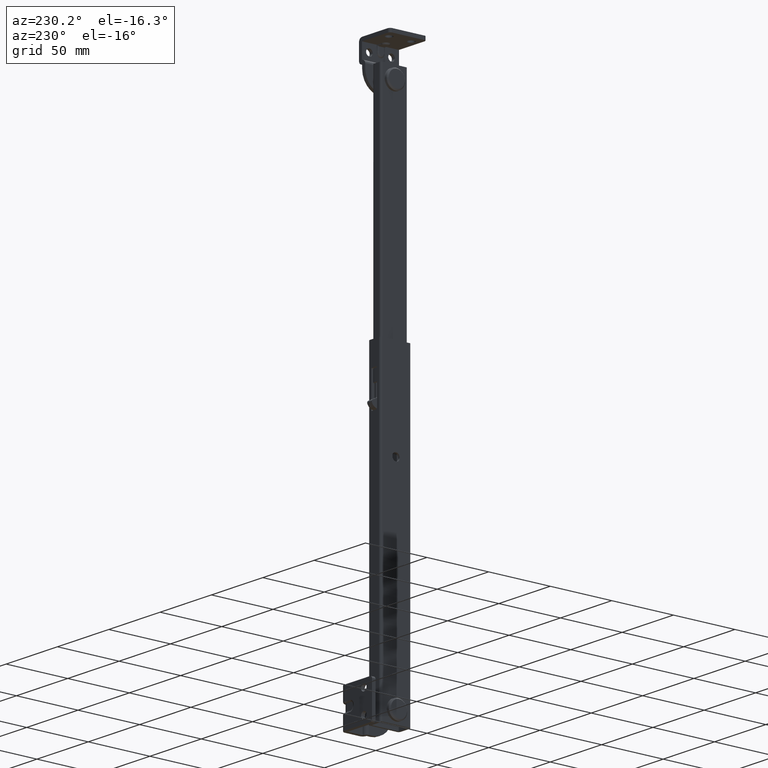
[diagram: clean part render]
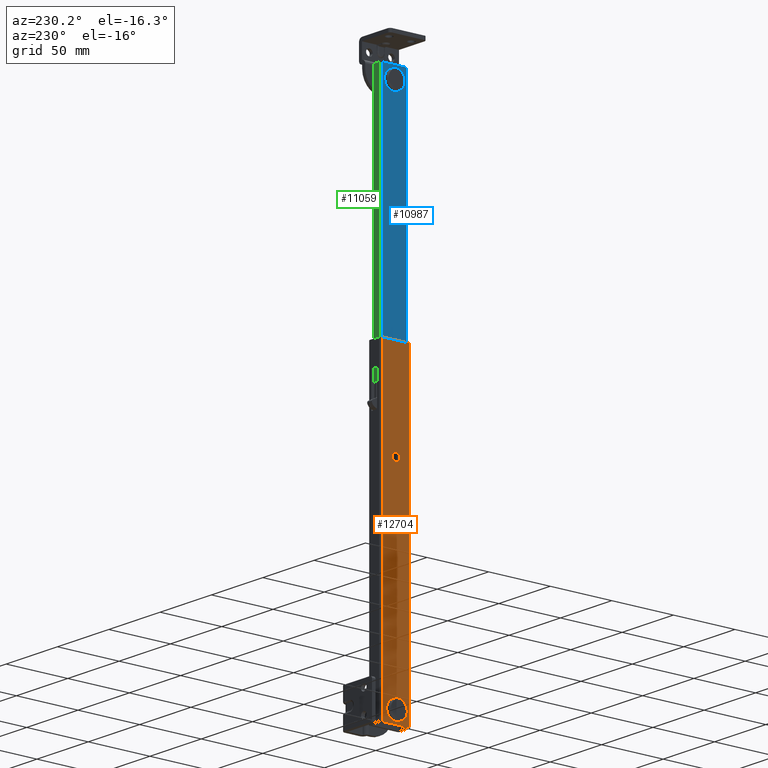
[diagram: same view with three faces highlighted in distinct colors, each labeled with its STEP entity id]
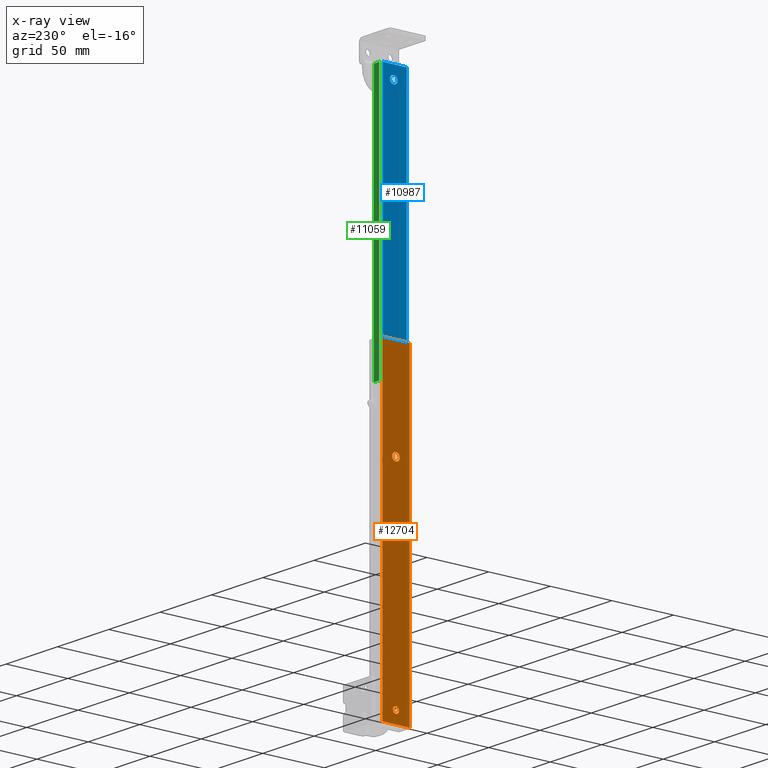
[diagram: x-ray of the same camera — body ghosted, the three highlighted faces saturated]
A machine part, auxiliary view with three faces highlighted in distinct colors.
The next image is the same camera in x-ray (body ghosted, the three faces saturated) — at least one of them is partly hidden behind the body in this view.
Their STEP definitions:

[orange] entity #12704 — the highlighted face is a freeform B-spline surface patch.
#11131=CARTESIAN_POINT('',(-19.699997000000049,0.0,2.500000000000000));
#11132=VERTEX_POINT('',#11131);
#11133=CARTESIAN_POINT('',(-19.699997000000049,-2.480665533620065,0.310320012744065));
#11134=VERTEX_POINT('',#11133);
#11135=CARTESIAN_POINT('',(-19.699997000000049,0.0,2.500000000000000));
#11136=CARTESIAN_POINT('',(-19.699997000000049,-2.206746486848124,2.500000000000000));
#11137=CARTESIAN_POINT('',(-19.699997000000053,-2.480665533620065,0.310320012744065));
#11145=(BOUNDED_CURVE()B_SPLINE_CURVE(2,(#11135,#11136,#11137),.UNSPECIFIED.,.F.,.U.)B_SPLINE_CURVE_WITH_KNOTS((3,3),(0.500000000000000,0.728526070003487),.UNSPECIFIED.)CURVE()GEOMETRIC_REPRESENTATION_ITEM()RATIONAL_B_SPLINE_CURVE((1.0,0.732265055095561,0.954005428284015))REPRESENTATION_ITEM(''));
#11146=EDGE_CURVE('',#11132,#11134,#11145,.T.);
#11148=CARTESIAN_POINT('',(-19.699997000000049,2.499904807626976,-0.021816342579167));
#11149=VERTEX_POINT('',#11148);
#11150=CARTESIAN_POINT('',(-19.699997000000053,2.499904807626976,-0.021816342579167));
#11151=CARTESIAN_POINT('',(-19.699997000000053,2.499999999999999,-0.010908380885206));
#11152=CARTESIAN_POINT('',(-19.699997000000049,2.500000000000000,0.0));
#11153=CARTESIAN_POINT('',(-19.699997000000053,2.500000000000000,2.500000000000000));
#11154=CARTESIAN_POINT('',(-19.699997000000049,0.0,2.500000000000000));
#11162=(BOUNDED_CURVE()B_SPLINE_CURVE(2,(#11150,#11151,#11152,#11153,#11154),.UNSPECIFIED.,.F.,.U.)B_SPLINE_CURVE_WITH_KNOTS((3,2,3),(0.248460105124835,0.250000000000000,0.500000000000000),.UNSPECIFIED.)CURVE()GEOMETRIC_REPRESENTATION_ITEM()RATIONAL_B_SPLINE_CURVE((0.996414026850284,0.998195900933515,1.0,0.707106781186548,1.0))REPRESENTATION_ITEM(''));
#11163=EDGE_CURVE('',#11149,#11132,#11162,.T.);
#11234=CARTESIAN_POINT('',(-19.699997000000049,0.0,-2.500000000000000));
#11235=VERTEX_POINT('',#11234);
#11236=CARTESIAN_POINT('',(-19.699997000000057,-2.480665533620064,0.310320012744065));
#11237=CARTESIAN_POINT('',(-19.699997000000049,-2.500000000000000,0.155762326466545));
#11238=CARTESIAN_POINT('',(-19.699997000000049,-2.500000000000000,0.0));
#11239=CARTESIAN_POINT('',(-19.699997000000053,-2.500000000000000,-2.500000000000000));
#11240=CARTESIAN_POINT('',(-19.699997000000049,0.0,-2.500000000000000));
#11248=(BOUNDED_CURVE()B_SPLINE_CURVE(2,(#11236,#11237,#11238,#11239,#11240),.UNSPECIFIED.,.F.,.U.)B_SPLINE_CURVE_WITH_KNOTS((3,2,3),(0.728526070003487,0.750000000000000,1.0),.UNSPECIFIED.)CURVE()GEOMETRIC_REPRESENTATION_ITEM()RATIONAL_B_SPLINE_CURVE((0.954005428284015,0.974841726090986,1.0,0.707106781186548,1.0))REPRESENTATION_ITEM(''));
#11249=EDGE_CURVE('',#11134,#11235,#11248,.T.);
#11283=CARTESIAN_POINT('',(-19.699997000000049,0.0,-2.500000000000000));
#11284=CARTESIAN_POINT('',(-19.699997000000049,2.478278018887013,-2.500000000000000));
#11285=CARTESIAN_POINT('',(-19.699997000000053,2.499904807626976,-0.021816342579167));
#11293=(BOUNDED_CURVE()B_SPLINE_CURVE(2,(#11283,#11284,#11285),.UNSPECIFIED.,.F.,.U.)B_SPLINE_CURVE_WITH_KNOTS((3,3),(0.0,0.248460105124835),.UNSPECIFIED.)CURVE()GEOMETRIC_REPRESENTATION_ITEM()RATIONAL_B_SPLINE_CURVE((1.0,0.708910880253033,0.996414026850284))REPRESENTATION_ITEM(''));
#11294=EDGE_CURVE('',#11235,#11149,#11293,.T.);
#11499=CARTESIAN_POINT('',(-19.699997000000049,-8.276935E-015,167.550000000000010));
#11500=VERTEX_POINT('',#11499);
#11501=CARTESIAN_POINT('',(-19.699997000000049,-3.026411951841830,164.878590408950090));
#11502=VERTEX_POINT('',#11501);
#11503=CARTESIAN_POINT('',(-19.699997000000049,-8.276935E-015,167.550000000000010));
#11504=CARTESIAN_POINT('',(-19.699997000000057,-2.692230725784548,167.550000000000010));
#11505=CARTESIAN_POINT('',(-19.699997000000053,-3.026411951841829,164.878590408950030));
#11513=(BOUNDED_CURVE()B_SPLINE_CURVE(2,(#11503,#11504,#11505),.UNSPECIFIED.,.F.,.U.)B_SPLINE_CURVE_WITH_KNOTS((3,3),(0.500000000000000,0.728526070738797),.UNSPECIFIED.)CURVE()GEOMETRIC_REPRESENTATION_ITEM()RATIONAL_B_SPLINE_CURVE((1.0,0.732265054234092,0.954005429710967))REPRESENTATION_ITEM(''));
#11514=EDGE_CURVE('',#11500,#11502,#11513,.T.);
#11516=CARTESIAN_POINT('',(-19.699997000000049,3.049883865313962,164.473384063091600));
#11517=VERTEX_POINT('',#11516);
#11518=CARTESIAN_POINT('',(-19.699997000000049,3.049883865313962,164.473384063091570));
#11519=CARTESIAN_POINT('',(-19.699997000000049,3.049999999999991,164.486691776358330));
#11520=CARTESIAN_POINT('',(-19.699997000000049,3.049999999999992,164.500000000000000));
#11521=CARTESIAN_POINT('',(-19.699997000000053,3.049999999999992,167.549999999999950));
#11522=CARTESIAN_POINT('',(-19.699997000000049,-8.276935E-015,167.550000000000010));
#11530=(BOUNDED_CURVE()B_SPLINE_CURVE(2,(#11518,#11519,#11520,#11521,#11522),.UNSPECIFIED.,.F.,.U.)B_SPLINE_CURVE_WITH_KNOTS((3,2,3),(0.248460105244755,0.250000000000000,0.500000000000000),.UNSPECIFIED.)CURVE()GEOMETRIC_REPRESENTATION_ITEM()RATIONAL_B_SPLINE_CURVE((0.996414027127812,0.998195901074010,1.0,0.707106781186547,1.0))REPRESENTATION_ITEM(''));
#11531=EDGE_CURVE('',#11517,#11500,#11530,.T.);
#11602=CARTESIAN_POINT('',(-19.699997000000049,-8.276935E-015,161.449999999999990));
#11603=VERTEX_POINT('',#11602);
#11604=CARTESIAN_POINT('',(-19.699997000000053,-3.026411951841830,164.878590408950150));
#11605=CARTESIAN_POINT('',(-19.699997000000046,-3.050000000000008,164.690030031614300));
#11606=CARTESIAN_POINT('',(-19.699997000000049,-3.050000000000008,164.500000000000000));
#11607=CARTESIAN_POINT('',(-19.699997000000053,-3.050000000000009,161.450000000000020));
#11608=CARTESIAN_POINT('',(-19.699997000000049,-8.276935E-015,161.449999999999990));
#11616=(BOUNDED_CURVE()B_SPLINE_CURVE(2,(#11604,#11605,#11606,#11607,#11608),.UNSPECIFIED.,.F.,.U.)B_SPLINE_CURVE_WITH_KNOTS((3,2,3),(0.728526070738797,0.750000000000000,1.0),.UNSPECIFIED.)CURVE()GEOMETRIC_REPRESENTATION_ITEM()RATIONAL_B_SPLINE_CURVE((0.954005429710966,0.974841726952455,1.0,0.707106781186547,1.0))REPRESENTATION_ITEM(''));
#11617=EDGE_CURVE('',#11502,#11603,#11616,.T.);
#11651=CARTESIAN_POINT('',(-19.699997000000049,-8.276935E-015,161.449999999999990));
#11652=CARTESIAN_POINT('',(-19.699997000000057,3.023499185100661,161.450000000000020));
#11653=CARTESIAN_POINT('',(-19.699997000000049,3.049883865313962,164.473384063091570));
#11661=(BOUNDED_CURVE()B_SPLINE_CURVE(2,(#11651,#11652,#11653),.UNSPECIFIED.,.F.,.U.)B_SPLINE_CURVE_WITH_KNOTS((3,3),(0.0,0.248460105244755),.UNSPECIFIED.)CURVE()GEOMETRIC_REPRESENTATION_ITEM()RATIONAL_B_SPLINE_CURVE((1.0,0.708910880112538,0.996414027127812))REPRESENTATION_ITEM(''));
#11662=EDGE_CURVE('',#11603,#11517,#11661,.T.);
#12354=CARTESIAN_POINT('',(-19.699997000000000,-10.900002000000001,-9.500000000000000));
#12355=VERTEX_POINT('',#12354);
#12369=CARTESIAN_POINT('',(-19.699990999999901,10.900001860373660,-9.500000000000000));
#12370=VERTEX_POINT('',#12369);
#12371=CARTESIAN_POINT('',(-19.699990999999901,10.900001860373660,-9.500000000000000));
#12372=CARTESIAN_POINT('',(-19.699997000000000,-10.900002000000001,-9.500000000000000));
#12373=QUASI_UNIFORM_CURVE('',1,(#12371,#12372),.UNSPECIFIED.,.F.,.U.);
#12374=EDGE_CURVE('',#12370,#12355,#12373,.T.);
#12460=CARTESIAN_POINT('',(-19.699990999999901,10.900001860373701,240.500000000000000));
#12461=VERTEX_POINT('',#12460);
#12477=CARTESIAN_POINT('',(-19.699997000000000,-10.900001999999960,240.500000000000000));
#12478=VERTEX_POINT('',#12477);
#12479=CARTESIAN_POINT('',(-19.699990999999901,10.900001860373701,240.500000000000000));
#12480=CARTESIAN_POINT('',(-19.699997000000000,-10.900001999999960,240.500000000000000));
#12481=QUASI_UNIFORM_CURVE('',1,(#12479,#12480),.UNSPECIFIED.,.F.,.U.);
#12482=EDGE_CURVE('',#12461,#12478,#12481,.T.);
#12669=CARTESIAN_POINT('',(-19.699997000000000,-10.900001999999960,240.500000000000000));
#12670=CARTESIAN_POINT('',(-19.699997000000000,-10.900002000000001,-9.500000000000000));
#12671=QUASI_UNIFORM_CURVE('',1,(#12669,#12670),.UNSPECIFIED.,.F.,.U.);
#12672=EDGE_CURVE('',#12478,#12355,#12671,.T.);
#12677=CARTESIAN_POINT('',(-19.699997000000000,-11.988911663402421,-21.987499515451479));
#12678=CARTESIAN_POINT('',(-19.699997000000000,-11.988911663402421,252.987506220974010));
#12679=CARTESIAN_POINT('',(-19.699997000000000,11.988910939054451,-21.987499515451479));
#12680=CARTESIAN_POINT('',(-19.699997000000000,11.988910939054451,252.987506220974010));
#12681=B_SPLINE_SURFACE_WITH_KNOTS('',1,1,((#12677,#12679),(#12678,#12680)),.UNSPECIFIED.,.F.,.F.,.U.,(2,2),(2,2),(0.0,274.975005736425490),(0.0,23.977822602456879),.UNSPECIFIED.);
#12682=ORIENTED_EDGE('',*,*,#12374,.T.);
#12683=ORIENTED_EDGE('',*,*,#12672,.F.);
#12684=ORIENTED_EDGE('',*,*,#12482,.F.);
#12685=CARTESIAN_POINT('',(-19.699990999999901,10.900001860373701,240.500000000000000));
#12686=CARTESIAN_POINT('',(-19.699990999999901,10.900001860373660,-9.500000000000000));
#12687=QUASI_UNIFORM_CURVE('',1,(#12685,#12686),.UNSPECIFIED.,.F.,.U.);
#12688=EDGE_CURVE('',#12461,#12370,#12687,.T.);
#12689=ORIENTED_EDGE('',*,*,#12688,.T.);
#12690=EDGE_LOOP('',(#12682,#12683,#12684,#12689));
#12691=FACE_OUTER_BOUND('',#12690,.T.);
#12692=ORIENTED_EDGE('',*,*,#11662,.T.);
#12693=ORIENTED_EDGE('',*,*,#11531,.T.);
#12694=ORIENTED_EDGE('',*,*,#11514,.T.);
#12695=ORIENTED_EDGE('',*,*,#11617,.T.);
#12696=EDGE_LOOP('',(#12692,#12693,#12694,#12695));
#12697=FACE_BOUND('',#12696,.T.);
#12698=ORIENTED_EDGE('',*,*,#11294,.T.);
#12699=ORIENTED_EDGE('',*,*,#11163,.T.);
#12700=ORIENTED_EDGE('',*,*,#11146,.T.);
#12701=ORIENTED_EDGE('',*,*,#11249,.T.);
#12702=EDGE_LOOP('',(#12698,#12699,#12700,#12701));
#12703=FACE_BOUND('',#12702,.T.);
#12704=ADVANCED_FACE('',(#12691,#12697,#12703),#12681,.T.);

[blue] entity #10987 — the highlighted face is a freeform B-spline surface patch.
#9658=CARTESIAN_POINT('',(-17.599990999999999,3.028679054806954,409.639995579230690));
#9659=VERTEX_POINT('',#9658);
#9660=CARTESIAN_POINT('',(-17.599990999999999,-3.505627E-014,413.050000000000010));
#9661=VERTEX_POINT('',#9660);
#9662=CARTESIAN_POINT('',(-17.599990999999996,3.028679054806954,409.639995579230630));
#9663=CARTESIAN_POINT('',(-17.599990999999996,3.049999999999966,409.819366429941970));
#9664=CARTESIAN_POINT('',(-17.599990999999999,3.049999999999965,410.0));
#9665=CARTESIAN_POINT('',(-17.599990999999996,3.049999999999965,413.050000000000010));
#9666=CARTESIAN_POINT('',(-17.599990999999999,-3.505627E-014,413.050000000000010));
#9674=(BOUNDED_CURVE()B_SPLINE_CURVE(2,(#9662,#9663,#9664,#9665,#9666),.UNSPECIFIED.,.F.,.U.)B_SPLINE_CURVE_WITH_KNOTS((3,2,3),(0.229562472950248,0.250000000000000,0.500000000000000),.UNSPECIFIED.)CURVE()GEOMETRIC_REPRESENTATION_ITEM()RATIONAL_B_SPLINE_CURVE((0.956026753079686,0.976055947671244,1.0,0.707106781186547,1.0))REPRESENTATION_ITEM(''));
#9675=EDGE_CURVE('',#9659,#9661,#9674,.T.);
#9716=CARTESIAN_POINT('',(-17.599990999999999,-3.044311134765654,410.186198052465780));
#9717=VERTEX_POINT('',#9716);
#9723=CARTESIAN_POINT('',(-17.599990999999999,-3.505627E-014,413.050000000000010));
#9724=CARTESIAN_POINT('',(-17.599990999999992,-2.869153491061323,413.049999999999950));
#9725=CARTESIAN_POINT('',(-17.599990999999999,-3.044311134765654,410.186198052465780));
#9733=(BOUNDED_CURVE()B_SPLINE_CURVE(2,(#9723,#9724,#9725),.UNSPECIFIED.,.F.,.U.)B_SPLINE_CURVE_WITH_KNOTS((3,3),(0.500000000000000,0.739332961461560),.UNSPECIFIED.)CURVE()GEOMETRIC_REPRESENTATION_ITEM()RATIONAL_B_SPLINE_CURVE((1.0,0.719603994197471,0.976072040000639))REPRESENTATION_ITEM(''));
#9734=EDGE_CURVE('',#9661,#9717,#9733,.T.);
#9757=CARTESIAN_POINT('',(-17.599990999999999,-3.505627E-014,406.949999999999990));
#9758=VERTEX_POINT('',#9757);
#9759=CARTESIAN_POINT('',(-17.599990999999999,-3.505627E-014,406.949999999999990));
#9760=CARTESIAN_POINT('',(-17.599990999999999,2.708932295025173,406.949999999999990));
#9761=CARTESIAN_POINT('',(-17.599991000000003,3.028679054806954,409.639995579230630));
#9769=(BOUNDED_CURVE()B_SPLINE_CURVE(2,(#9759,#9760,#9761),.UNSPECIFIED.,.F.,.U.)B_SPLINE_CURVE_WITH_KNOTS((3,3),(0.0,0.229562472950248),.UNSPECIFIED.)CURVE()GEOMETRIC_REPRESENTATION_ITEM()RATIONAL_B_SPLINE_CURVE((1.0,0.731050833515303,0.956026753079686))REPRESENTATION_ITEM(''));
#9770=EDGE_CURVE('',#9758,#9659,#9769,.T.);
#9772=CARTESIAN_POINT('',(-17.599991000000003,-3.044311134765654,410.186198052465780));
#9773=CARTESIAN_POINT('',(-17.599991000000006,-3.050000000000035,410.093185934964540));
#9774=CARTESIAN_POINT('',(-17.599990999999999,-3.050000000000035,410.0));
#9775=CARTESIAN_POINT('',(-17.599990999999996,-3.050000000000036,406.950000000000050));
#9776=CARTESIAN_POINT('',(-17.599990999999999,-3.505627E-014,406.949999999999990));
#9784=(BOUNDED_CURVE()B_SPLINE_CURVE(2,(#9772,#9773,#9774,#9775,#9776),.UNSPECIFIED.,.F.,.U.)B_SPLINE_CURVE_WITH_KNOTS((3,2,3),(0.739332961461561,0.750000000000000,1.0),.UNSPECIFIED.)CURVE()GEOMETRIC_REPRESENTATION_ITEM()RATIONAL_B_SPLINE_CURVE((0.976072040000640,0.987502786989078,1.0,0.707106781186547,1.0))REPRESENTATION_ITEM(''));
#9785=EDGE_CURVE('',#9717,#9758,#9784,.T.);
#10030=CARTESIAN_POINT('',(-17.599990999999999,6.028679054806989,197.639995579230710));
#10031=VERTEX_POINT('',#10030);
#10032=CARTESIAN_POINT('',(-17.599990999999999,3.0,201.050000000000010));
#10033=VERTEX_POINT('',#10032);
#10034=CARTESIAN_POINT('',(-17.599990999999992,6.028679054806989,197.639995579230710));
#10035=CARTESIAN_POINT('',(-17.599990999999996,6.050000000000000,197.819366429941940));
#10036=CARTESIAN_POINT('',(-17.599990999999999,6.050000000000000,198.0));
#10037=CARTESIAN_POINT('',(-17.599990999999996,6.050000000000000,201.050000000000070));
#10038=CARTESIAN_POINT('',(-17.599990999999999,3.0,201.050000000000010));
#10046=(BOUNDED_CURVE()B_SPLINE_CURVE(2,(#10034,#10035,#10036,#10037,#10038),.UNSPECIFIED.,.F.,.U.)B_SPLINE_CURVE_WITH_KNOTS((3,2,3),(0.229562472950247,0.250000000000000,0.500000000000000),.UNSPECIFIED.)CURVE()GEOMETRIC_REPRESENTATION_ITEM()RATIONAL_B_SPLINE_CURVE((0.956026753079685,0.976055947671244,1.0,0.707106781186547,1.0))REPRESENTATION_ITEM(''));
#10047=EDGE_CURVE('',#10031,#10033,#10046,.T.);
#10088=CARTESIAN_POINT('',(-17.599990999999999,-0.044311134765620,198.186198052465810));
#10089=VERTEX_POINT('',#10088);
#10095=CARTESIAN_POINT('',(-17.599990999999999,3.0,201.050000000000010));
#10096=CARTESIAN_POINT('',(-17.599990999999999,0.130846508938637,201.050000000000010));
#10097=CARTESIAN_POINT('',(-17.599990999999992,-0.044311134765620,198.186198052465810));
#10105=(BOUNDED_CURVE()B_SPLINE_CURVE(2,(#10095,#10096,#10097),.UNSPECIFIED.,.F.,.U.)B_SPLINE_CURVE_WITH_KNOTS((3,3),(0.500000000000000,0.739332961461565),.UNSPECIFIED.)CURVE()GEOMETRIC_REPRESENTATION_ITEM()RATIONAL_B_SPLINE_CURVE((1.0,0.719603994197465,0.976072040000648))REPRESENTATION_ITEM(''));
#10106=EDGE_CURVE('',#10033,#10089,#10105,.T.);
#10129=CARTESIAN_POINT('',(-17.599990999999999,3.0,194.949999999999990));
#10130=VERTEX_POINT('',#10129);
#10131=CARTESIAN_POINT('',(-17.599990999999999,3.0,194.949999999999990));
#10132=CARTESIAN_POINT('',(-17.599991000000003,5.708932295025199,194.950000000000130));
#10133=CARTESIAN_POINT('',(-17.599990999999999,6.028679054806989,197.639995579230660));
#10141=(BOUNDED_CURVE()B_SPLINE_CURVE(2,(#10131,#10132,#10133),.UNSPECIFIED.,.F.,.U.)B_SPLINE_CURVE_WITH_KNOTS((3,3),(0.0,0.229562472950248),.UNSPECIFIED.)CURVE()GEOMETRIC_REPRESENTATION_ITEM()RATIONAL_B_SPLINE_CURVE((1.0,0.731050833515303,0.956026753079685))REPRESENTATION_ITEM(''));
#10142=EDGE_CURVE('',#10130,#10031,#10141,.T.);
#10144=CARTESIAN_POINT('',(-17.599990999999999,-0.044311134765620,198.186198052465840));
#10145=CARTESIAN_POINT('',(-17.599990999999999,-0.050000000000000,198.093185934964450));
#10146=CARTESIAN_POINT('',(-17.599990999999999,-0.050000000000000,198.0));
#10147=CARTESIAN_POINT('',(-17.599990999999996,-0.050000000000000,194.950000000000100));
#10148=CARTESIAN_POINT('',(-17.599990999999999,3.0,194.949999999999990));
#10156=(BOUNDED_CURVE()B_SPLINE_CURVE(2,(#10144,#10145,#10146,#10147,#10148),.UNSPECIFIED.,.F.,.U.)B_SPLINE_CURVE_WITH_KNOTS((3,2,3),(0.739332961461564,0.750000000000000,1.0),.UNSPECIFIED.)CURVE()GEOMETRIC_REPRESENTATION_ITEM()RATIONAL_B_SPLINE_CURVE((0.976072040000647,0.987502786989081,1.0,0.707106781186547,1.0))REPRESENTATION_ITEM(''));
#10157=EDGE_CURVE('',#10089,#10130,#10156,.T.);
#10396=CARTESIAN_POINT('',(-17.599999999999049,8.900000000000000,213.0));
#10397=VERTEX_POINT('',#10396);
#10411=CARTESIAN_POINT('',(-17.599999999998701,8.899999257732080,420.0));
#10412=VERTEX_POINT('',#10411);
#10413=CARTESIAN_POINT('',(-17.599999999999049,8.900000000000000,213.0));
#10414=CARTESIAN_POINT('',(-17.599999999998701,8.899999257732080,420.0));
#10415=QUASI_UNIFORM_CURVE('',1,(#10413,#10414),.UNSPECIFIED.,.F.,.U.);
#10416=EDGE_CURVE('',#10397,#10412,#10415,.T.);
#10585=CARTESIAN_POINT('',(-17.599999999998701,8.899999257732041,170.0));
#10586=VERTEX_POINT('',#10585);
#10602=CARTESIAN_POINT('',(-17.599999999999049,8.900000000000000,185.0));
#10603=VERTEX_POINT('',#10602);
#10604=CARTESIAN_POINT('',(-17.599999999998701,8.899999257732041,170.0));
#10605=CARTESIAN_POINT('',(-17.599999999999049,8.900000000000000,185.0));
#10606=QUASI_UNIFORM_CURVE('',1,(#10604,#10605),.UNSPECIFIED.,.F.,.U.);
#10607=EDGE_CURVE('',#10586,#10603,#10606,.T.);
#10651=CARTESIAN_POINT('',(-17.599999999999049,8.900000000000000,213.0));
#10652=CARTESIAN_POINT('',(-17.599999999999049,8.900000000000000,185.0));
#10653=QUASI_UNIFORM_CURVE('',1,(#10651,#10652),.UNSPECIFIED.,.F.,.U.);
#10654=EDGE_CURVE('',#10397,#10603,#10653,.T.);
#10751=CARTESIAN_POINT('',(-17.599990999999800,-10.500000000000000,420.0));
#10752=VERTEX_POINT('',#10751);
#10753=CARTESIAN_POINT('',(-17.599990999999800,-10.500000000000000,420.0));
#10754=CARTESIAN_POINT('',(-17.599999999998701,8.899999257732080,420.0));
#10755=QUASI_UNIFORM_CURVE('',1,(#10753,#10754),.UNSPECIFIED.,.F.,.U.);
#10756=EDGE_CURVE('',#10752,#10412,#10755,.T.);
#10848=CARTESIAN_POINT('',(-17.599990999999800,-10.500000000000000,170.0));
#10849=VERTEX_POINT('',#10848);
#10855=CARTESIAN_POINT('',(-17.599990999999800,-10.500000000000000,170.0));
#10856=CARTESIAN_POINT('',(-17.599999999998701,8.899999257732041,170.0));
#10857=QUASI_UNIFORM_CURVE('',1,(#10855,#10856),.UNSPECIFIED.,.F.,.U.);
#10858=EDGE_CURVE('',#10849,#10586,#10857,.T.);
#10882=CARTESIAN_POINT('',(-17.599990999999800,-10.500000000000000,170.0));
#10883=CARTESIAN_POINT('',(-17.599990999999800,-10.500000000000000,420.0));
#10884=QUASI_UNIFORM_CURVE('',1,(#10882,#10883),.UNSPECIFIED.,.F.,.U.);
#10885=EDGE_CURVE('',#10849,#10752,#10884,.T.);
#10962=CARTESIAN_POINT('',(-17.599990550449888,-11.469029893088610,432.487499515451470));
#10963=CARTESIAN_POINT('',(-17.600000449548531,9.869029025841032,432.487499515451470));
#10964=CARTESIAN_POINT('',(-17.599990550449888,-11.469029893088610,157.512493779025990));
#10965=CARTESIAN_POINT('',(-17.600000449548531,9.869029025841032,157.512493779025990));
#10966=B_SPLINE_SURFACE_WITH_KNOTS('',1,1,((#10962,#10964),(#10963,#10965)),.UNSPECIFIED.,.F.,.F.,.U.,(2,2),(2,2),(0.0,21.338058918931939),(0.0,274.975005736425490),.UNSPECIFIED.);
#10967=ORIENTED_EDGE('',*,*,#10858,.F.);
#10968=ORIENTED_EDGE('',*,*,#10885,.T.);
#10969=ORIENTED_EDGE('',*,*,#10756,.T.);
#10970=ORIENTED_EDGE('',*,*,#10416,.F.);
#10971=ORIENTED_EDGE('',*,*,#10654,.T.);
#10972=ORIENTED_EDGE('',*,*,#10607,.F.);
#10973=EDGE_LOOP('',(#10967,#10968,#10969,#10970,#10971,#10972));
#10974=FACE_OUTER_BOUND('',#10973,.T.);
#10975=ORIENTED_EDGE('',*,*,#10106,.T.);
#10976=ORIENTED_EDGE('',*,*,#10157,.T.);
#10977=ORIENTED_EDGE('',*,*,#10142,.T.);
#10978=ORIENTED_EDGE('',*,*,#10047,.T.);
#10979=EDGE_LOOP('',(#10975,#10976,#10977,#10978));
#10980=FACE_BOUND('',#10979,.T.);
#10981=ORIENTED_EDGE('',*,*,#9734,.T.);
#10982=ORIENTED_EDGE('',*,*,#9785,.T.);
#10983=ORIENTED_EDGE('',*,*,#9770,.T.);
#10984=ORIENTED_EDGE('',*,*,#9675,.T.);
#10985=EDGE_LOOP('',(#10981,#10982,#10983,#10984));
#10986=FACE_BOUND('',#10985,.T.);
#10987=ADVANCED_FACE('',(#10974,#10980,#10986),#10966,.T.);

[green] entity #11059 — the highlighted face is a freeform B-spline surface patch.
#10394=CARTESIAN_POINT('',(-15.999999999998900,10.500000000000000,213.0));
#10395=VERTEX_POINT('',#10394);
#10418=CARTESIAN_POINT('',(-15.999999999998851,10.500000000000000,420.0));
#10419=VERTEX_POINT('',#10418);
#10435=CARTESIAN_POINT('',(-15.999999999998851,10.500000000000000,420.0));
#10436=CARTESIAN_POINT('',(-15.999999999998900,10.500000000000000,213.0));
#10437=QUASI_UNIFORM_CURVE('',1,(#10435,#10436),.UNSPECIFIED.,.F.,.U.);
#10438=EDGE_CURVE('',#10419,#10395,#10437,.T.);
#10459=CARTESIAN_POINT('',(-10.899988000000020,10.500000000000000,213.0));
#10460=VERTEX_POINT('',#10459);
#10476=CARTESIAN_POINT('',(-10.899988000000000,10.500000000000000,420.0));
#10477=VERTEX_POINT('',#10476);
#10478=CARTESIAN_POINT('',(-10.899988000000020,10.500000000000000,213.0));
#10479=CARTESIAN_POINT('',(-10.899988000000000,10.500000000000000,420.0));
#10480=QUASI_UNIFORM_CURVE('',1,(#10478,#10479),.UNSPECIFIED.,.F.,.U.);
#10481=EDGE_CURVE('',#10460,#10477,#10480,.T.);
#10711=CARTESIAN_POINT('',(-15.999999999998900,10.500000000000000,213.0));
#10712=CARTESIAN_POINT('',(-10.899988000000020,10.500000000000000,213.0));
#10713=QUASI_UNIFORM_CURVE('',1,(#10711,#10712),.UNSPECIFIED.,.F.,.U.);
#10714=EDGE_CURVE('',#10395,#10460,#10713,.T.);
#10745=CARTESIAN_POINT('',(-15.999999999998851,10.500000000000000,420.0));
#10746=CARTESIAN_POINT('',(-10.899988000000000,10.500000000000000,420.0));
#10747=QUASI_UNIFORM_CURVE('',1,(#10745,#10746),.UNSPECIFIED.,.F.,.U.);
#10748=EDGE_CURVE('',#10419,#10477,#10747,.T.);
#11048=CARTESIAN_POINT('',(-10.645242554110659,10.500000000000000,430.339649598793930));
#11049=CARTESIAN_POINT('',(-10.645242554110659,10.500000000000000,202.660344849033490));
#11050=CARTESIAN_POINT('',(-16.254745719474201,10.500000000000000,430.339649598793930));
#11051=CARTESIAN_POINT('',(-16.254745719474201,10.500000000000000,202.660344849033490));
#11052=B_SPLINE_SURFACE_WITH_KNOTS('',1,1,((#11048,#11050),(#11049,#11051)),.UNSPECIFIED.,.F.,.F.,.U.,(2,2),(2,2),(0.0,227.679304749760410),(0.0,5.609503165363547),.UNSPECIFIED.);
#11053=ORIENTED_EDGE('',*,*,#10714,.F.);
#11054=ORIENTED_EDGE('',*,*,#10438,.F.);
#11055=ORIENTED_EDGE('',*,*,#10748,.T.);
#11056=ORIENTED_EDGE('',*,*,#10481,.F.);
#11057=EDGE_LOOP('',(#11053,#11054,#11055,#11056));
#11058=FACE_OUTER_BOUND('',#11057,.T.);
#11059=ADVANCED_FACE('',(#11058),#11052,.T.);